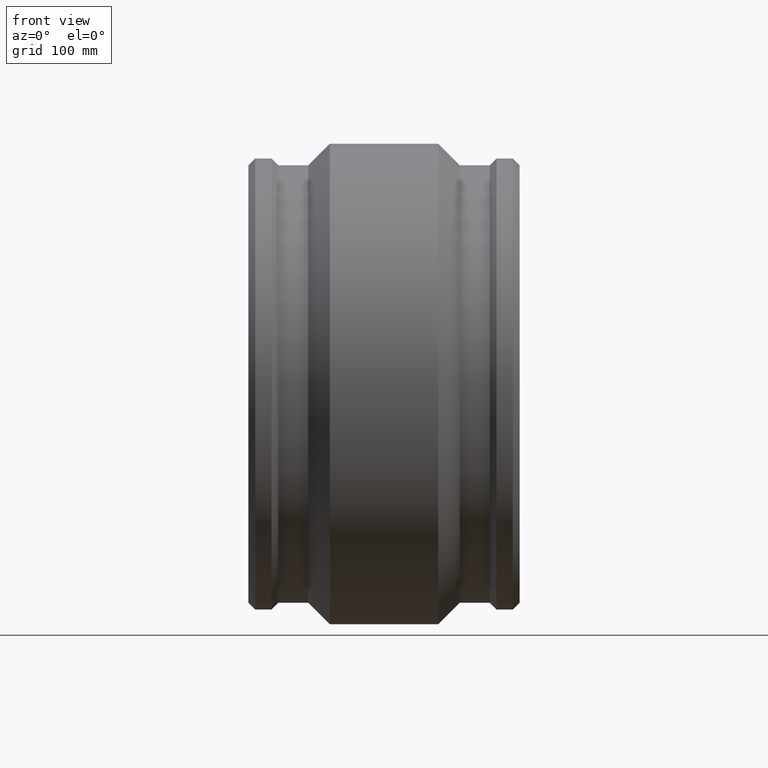
[diagram: clean part render]
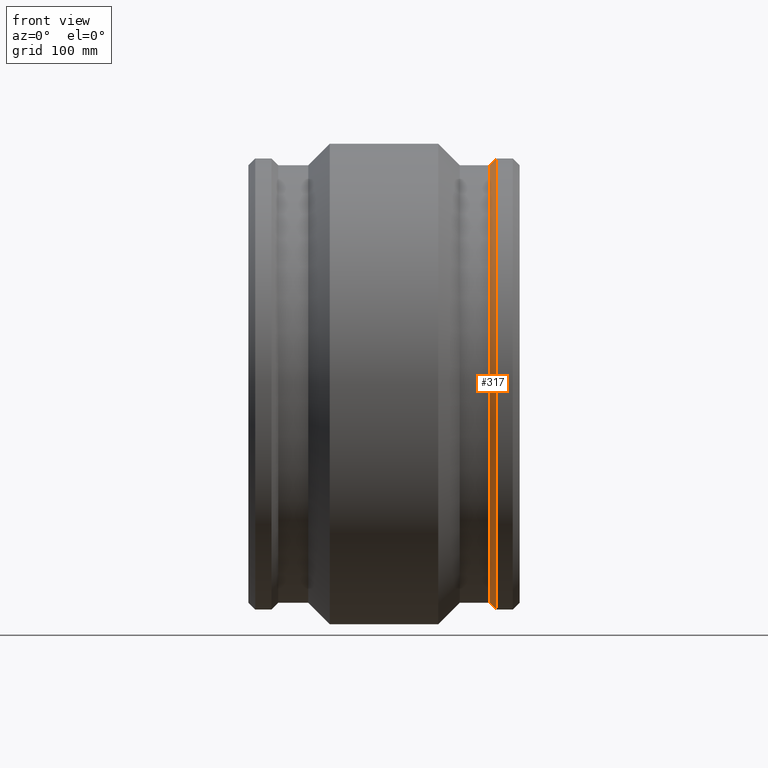
[diagram: same view with one face highlighted and labeled with its STEP entity id]
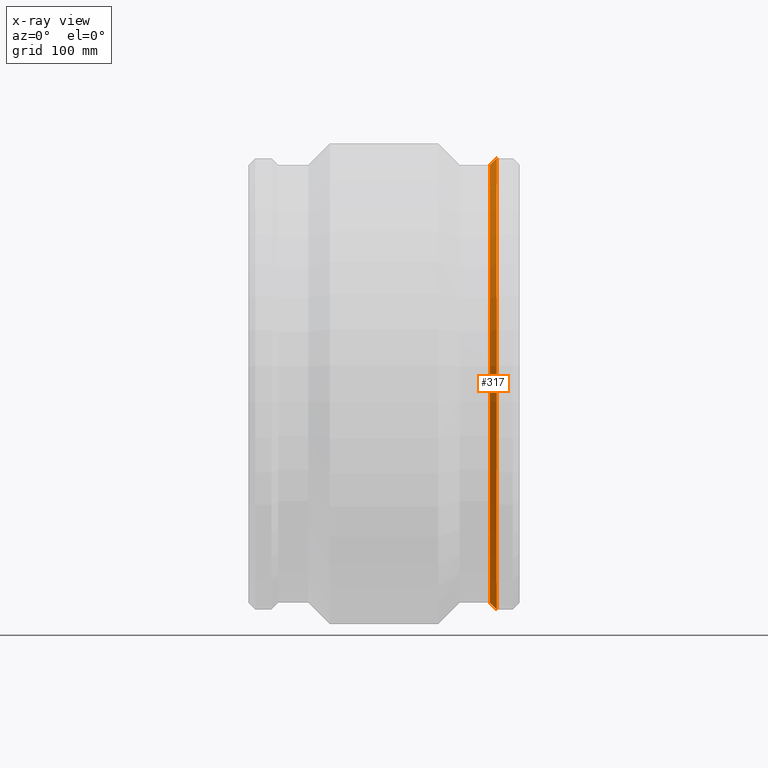
[diagram: x-ray of the same camera — body ghosted, the highlighted face saturated]
A machine part, front view. The second image highlights one B-rep face of the part: STEP entity #317.
The next image is the same camera in x-ray: the body ghosted, the highlighted face saturated — about 0% of this face is hidden behind the body in this view.
In plain terms, the highlighted conical surface has half-angle 45 deg.
Its self-contained STEP definition (entity closure, byte-faithful):
#19=CONICAL_SURFACE('',#371,278.755,45.0000000000001);
#45=FACE_BOUND('',#136,.T.);
#87=FACE_OUTER_BOUND('',#135,.T.);
#135=EDGE_LOOP('',(#277));
#136=EDGE_LOOP('',(#278));
#152=CIRCLE('',#343,283.);
#166=CIRCLE('',#370,274.51);
#178=VERTEX_POINT('',#554);
#192=VERTEX_POINT('',#632);
#206=EDGE_CURVE('',#178,#178,#152,.T.);
#222=EDGE_CURVE('',#192,#192,#166,.T.);
#277=ORIENTED_EDGE('',*,*,#222,.T.);
#278=ORIENTED_EDGE('',*,*,#206,.F.);
#317=ADVANCED_FACE('',(#87,#45),#19,.T.);
#343=AXIS2_PLACEMENT_3D('',#555,#419,#420);
#370=AXIS2_PLACEMENT_3D('',#633,#473,#474);
#371=AXIS2_PLACEMENT_3D('',#634,#475,#476);
#419=DIRECTION('center_axis',(1.,1.83697019872103E-16,0.));
#420=DIRECTION('ref_axis',(0.,0.,-1.));
#473=DIRECTION('center_axis',(1.,1.83697019872103E-16,0.));
#474=DIRECTION('ref_axis',(0.,0.,-1.));
#475=DIRECTION('center_axis',(1.,1.83697019872103E-16,0.));
#476=DIRECTION('ref_axis',(-1.77635683940025E-16,1.,0.));
#554=CARTESIAN_POINT('',(141.09,283.,0.));
#555=CARTESIAN_POINT('Origin',(141.09,5.71463059120125E-14,0.));
#632=CARTESIAN_POINT('',(132.6,274.51,0.));
#633=CARTESIAN_POINT('Origin',(132.6,5.55867182132983E-14,0.));
#634=CARTESIAN_POINT('Origin',(136.845,5.63665120626554E-14,0.));